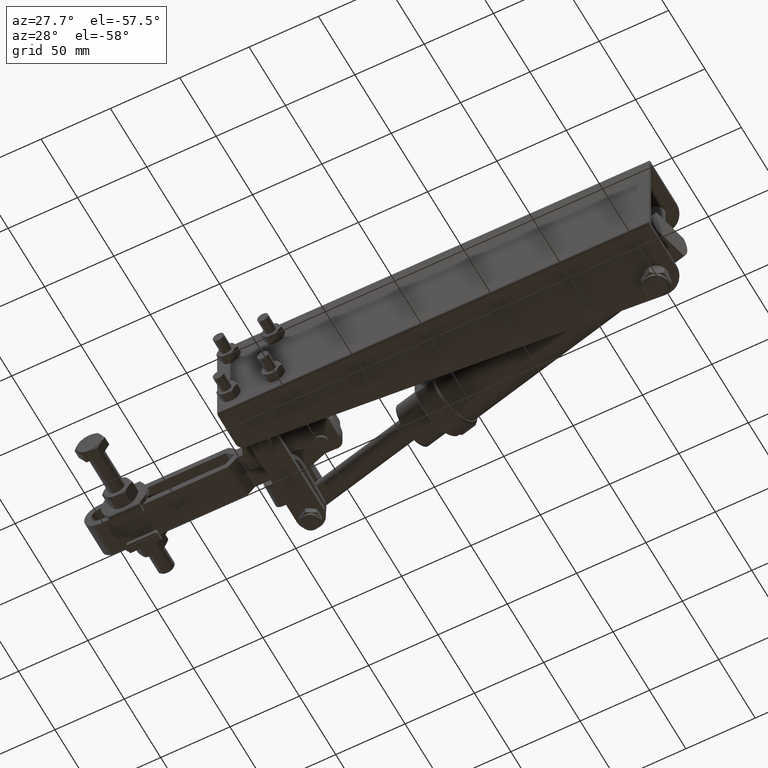
[diagram: clean part render]
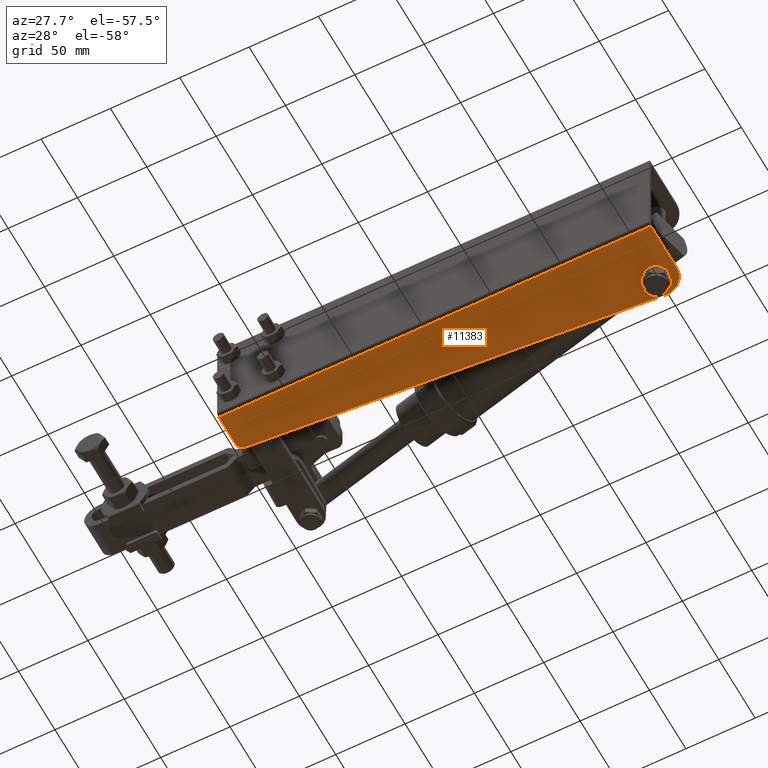
[diagram: same view with one face highlighted and labeled with its STEP entity id]
A machine part, auxiliary view. The second image highlights one B-rep face of the part: STEP entity #11383.
In plain terms, the highlighted planar face has unit normal (0, 0, -1).
Its self-contained STEP definition (entity closure, byte-faithful):
#165 = VERTEX_POINT ( 'NONE', #15543 ) ;
#185 = CARTESIAN_POINT ( 'NONE',  ( 243.5050602532110400, 40.77640014547056800, -37.99999999999999300 ) ) ;
#192 = CARTESIAN_POINT ( 'NONE',  ( 243.6999999999999300, 35.50000000000000700, -37.99999999999999300 ) ) ;
#547 = CIRCLE ( 'NONE', #12667, 5.280000000000006500 ) ;
#564 = ORIENTED_EDGE ( 'NONE', *, *, #20720, .T. ) ;
#708 = VERTEX_POINT ( 'NONE', #7956 ) ;
#774 = DIRECTION ( 'NONE',  ( 0.0000000000000000000, 0.0000000000000000000, 1.000000000000000000 ) ) ;
#1381 = CIRCLE ( 'NONE', #23001, 4.999999999999997300 ) ;
#1435 = DIRECTION ( 'NONE',  ( -1.000000000000000000, 0.0000000000000000000, 0.0000000000000000000 ) ) ;
#1648 = CIRCLE ( 'NONE', #11157, 5.280000000000006500 ) ;
#2064 = DIRECTION ( 'NONE',  ( 1.000000000000000000, 0.0000000000000000000, 0.0000000000000000000 ) ) ;
#2106 = VERTEX_POINT ( 'NONE', #14419 ) ;
#2327 = DIRECTION ( 'NONE',  ( -1.185342761588040300E-016, 1.000000000000000000, -0.0000000000000000000 ) ) ;
#2366 = EDGE_CURVE ( 'NONE', #11077, #3269, #4240, .T. ) ;
#2373 = ORIENTED_EDGE ( 'NONE', *, *, #17873, .T. ) ;
#2474 = CARTESIAN_POINT ( 'NONE',  ( -53.00000000000001400, 27.49999999999999600, -37.99999999999999300 ) ) ;
#2523 = VERTEX_POINT ( 'NONE', #7704 ) ;
#2617 = VERTEX_POINT ( 'NONE', #5683 ) ;
#2804 = VERTEX_POINT ( 'NONE', #185 ) ;
#2841 = CIRCLE ( 'NONE', #5767, 8.480000000000014600 ) ;
#2895 = ORIENTED_EDGE ( 'NONE', *, *, #12608, .F. ) ;
#2974 = AXIS2_PLACEMENT_3D ( 'NONE', #23415, #12435, #1435 ) ;
#3206 = FACE_BOUND ( 'NONE', #23819, .T. ) ;
#3228 = CARTESIAN_POINT ( 'NONE',  ( 235.2199999999999700, 35.50000000000000700, -37.99999999999999300 ) ) ;
#3256 = CIRCLE ( 'NONE', #22781, 15.00000000000001400 ) ;
#3269 = VERTEX_POINT ( 'NONE', #11094 ) ;
#3455 = AXIS2_PLACEMENT_3D ( 'NONE', #21014, #10032, #22853 ) ;
#3517 = DIRECTION ( 'NONE',  ( 0.0000000000000000000, 0.0000000000000000000, 1.000000000000000000 ) ) ;
#3917 = EDGE_CURVE ( 'NONE', #2804, #2523, #6415, .T. ) ;
#4106 = VERTEX_POINT ( 'NONE', #8405 ) ;
#4240 = LINE ( 'NONE', #10107, #18287 ) ;
#4355 = CARTESIAN_POINT ( 'NONE',  ( -53.00000000000001400, -2.500000000000002200, -37.99999999999999300 ) ) ;
#5020 = CIRCLE ( 'NONE', #16448, 8.480000000000014600 ) ;
#5383 = CIRCLE ( 'NONE', #23603, 8.480000000000014600 ) ;
#5470 = DIRECTION ( 'NONE',  ( 0.0000000000000000000, 0.0000000000000000000, -1.000000000000000000 ) ) ;
#5683 = CARTESIAN_POINT ( 'NONE',  ( 242.3376419207618300, 50.45489631176456400, -37.99999999999999300 ) ) ;
#5767 = AXIS2_PLACEMENT_3D ( 'NONE', #11775, #774, #13612 ) ;
#5827 = CARTESIAN_POINT ( 'NONE',  ( 243.6999999999999300, 35.50000000000000700, -37.99999999999999300 ) ) ;
#5936 = DIRECTION ( 'NONE',  ( 0.0000000000000000000, 0.0000000000000000000, 1.000000000000000000 ) ) ;
#5995 = VECTOR ( 'NONE', #9674, 1000.000000000000000 ) ;
#6139 = VERTEX_POINT ( 'NONE', #11399 ) ;
#6156 = LINE ( 'NONE', #15961, #15921 ) ;
#6415 = LINE ( 'NONE', #13284, #11877 ) ;
#6473 = ORIENTED_EDGE ( 'NONE', *, *, #8232, .T. ) ;
#6486 = CARTESIAN_POINT ( 'NONE',  ( 243.6999999999999300, 35.50000000000000700, -37.99999999999999300 ) ) ;
#6684 = EDGE_CURVE ( 'NONE', #6139, #2804, #1648, .T. ) ;
#6817 = EDGE_CURVE ( 'NONE', #8081, #165, #2841, .T. ) ;
#7679 = DIRECTION ( 'NONE',  ( 1.000000000000000000, 0.0000000000000000000, 0.0000000000000000000 ) ) ;
#7704 = CARTESIAN_POINT ( 'NONE',  ( 243.5050602532110400, 43.97775904913095200, -37.99999999999999300 ) ) ;
#7836 = CARTESIAN_POINT ( 'NONE',  ( 243.8949397467887900, 43.97775904913095200, -37.99999999999999300 ) ) ;
#7956 = CARTESIAN_POINT ( 'NONE',  ( 248.6999999999999600, 35.50000000000000000, -37.99999999999999300 ) ) ;
#7993 = DIRECTION ( 'NONE',  ( -0.9969930874509717000, -0.07749053861587780500, 0.0000000000000000000 ) ) ;
#8050 = ORIENTED_EDGE ( 'NONE', *, *, #10723, .T. ) ;
#8081 = VERTEX_POINT ( 'NONE', #17629 ) ;
#8232 = EDGE_CURVE ( 'NONE', #2523, #17434, #5020, .T. ) ;
#8323 = DIRECTION ( 'NONE',  ( 1.000000000000000000, 0.0000000000000000000, 0.0000000000000000000 ) ) ;
#8405 = CARTESIAN_POINT ( 'NONE',  ( -53.00000000000001400, 0.009999999999995689400, -37.99999999999999300 ) ) ;
#8473 = ORIENTED_EDGE ( 'NONE', *, *, #9625, .T. ) ;
#8532 = CARTESIAN_POINT ( 'NONE',  ( -48.00000000000001400, 22.87354133646644500, -37.99999999999999300 ) ) ;
#9247 = EDGE_LOOP ( 'NONE', ( #19635, #18761, #2895, #21284, #17664, #2373 ) ) ;
#9625 = EDGE_CURVE ( 'NONE', #708, #23503, #11638, .T. ) ;
#9674 = DIRECTION ( 'NONE',  ( 6.858054549187947600E-015, -1.000000000000000000, 0.0000000000000000000 ) ) ;
#9780 = EDGE_LOOP ( 'NONE', ( #8473, #17180 ) ) ;
#10032 = DIRECTION ( 'NONE',  ( -0.0000000000000000000, -0.0000000000000000000, 1.000000000000000000 ) ) ;
#10107 = CARTESIAN_POINT ( 'NONE',  ( 258.5000000000000000, -2.500000000000002200, -37.99999999999999300 ) ) ;
#10254 = CARTESIAN_POINT ( 'NONE',  ( 243.4999999999999700, 35.50000000000000000, -37.99999999999999300 ) ) ;
#10372 = CARTESIAN_POINT ( 'NONE',  ( 248.9799999999999600, 35.50000000000000700, -37.99999999999999300 ) ) ;
#10383 = DIRECTION ( 'NONE',  ( -1.000000000000000000, 0.0000000000000000000, 0.0000000000000000000 ) ) ;
#10723 = EDGE_CURVE ( 'NONE', #15333, #19082, #23328, .T. ) ;
#10786 = EDGE_CURVE ( 'NONE', #11077, #2617, #3256, .T. ) ;
#10881 = LINE ( 'NONE', #7836, #5995 ) ;
#11077 = VERTEX_POINT ( 'NONE', #13523 ) ;
#11094 = CARTESIAN_POINT ( 'NONE',  ( 258.5000000000000000, 0.009999999999995689400, -37.99999999999999300 ) ) ;
#11157 = AXIS2_PLACEMENT_3D ( 'NONE', #5827, #18672, #7679 ) ;
#11383 = ADVANCED_FACE ( 'NONE', ( #3206, #12385, #22110 ), #18234, .T. ) ;
#11399 = CARTESIAN_POINT ( 'NONE',  ( 238.4199999999999300, 35.50000000000000700, -37.99999999999999300 ) ) ;
#11638 = CIRCLE ( 'NONE', #2974, 5.000000000000004400 ) ;
#11775 = CARTESIAN_POINT ( 'NONE',  ( 243.6999999999999300, 35.50000000000000700, -37.99999999999999300 ) ) ;
#11877 = VECTOR ( 'NONE', #2327, 1000.000000000000000 ) ;
#12109 = DIRECTION ( 'NONE',  ( -1.000000000000000000, 0.0000000000000000000, 0.0000000000000000000 ) ) ;
#12195 = DIRECTION ( 'NONE',  ( -1.000000000000000000, -0.0000000000000000000, -0.0000000000000000000 ) ) ;
#12385 = FACE_OUTER_BOUND ( 'NONE', #9247, .T. ) ;
#12435 = DIRECTION ( 'NONE',  ( -0.0000000000000000000, -0.0000000000000000000, 1.000000000000000000 ) ) ;
#12550 = EDGE_CURVE ( 'NONE', #165, #15333, #10881, .T. ) ;
#12581 = EDGE_CURVE ( 'NONE', #2106, #4106, #20056, .T. ) ;
#12608 = EDGE_CURVE ( 'NONE', #2617, #23011, #20631, .T. ) ;
#12667 = AXIS2_PLACEMENT_3D ( 'NONE', #192, #13024, #2064 ) ;
#12946 = AXIS2_PLACEMENT_3D ( 'NONE', #6486, #19320, #8323 ) ;
#13024 = DIRECTION ( 'NONE',  ( -0.0000000000000000000, -0.0000000000000000000, -1.000000000000000000 ) ) ;
#13195 = EDGE_CURVE ( 'NONE', #2106, #23011, #1381, .T. ) ;
#13284 = CARTESIAN_POINT ( 'NONE',  ( 243.5050602532110400, 43.97775904913095200, -37.99999999999999300 ) ) ;
#13523 = CARTESIAN_POINT ( 'NONE',  ( 258.5000000000000000, 35.50000000000000000, -37.99999999999999300 ) ) ;
#13612 = DIRECTION ( 'NONE',  ( 1.000000000000000000, 0.0000000000000000000, 0.0000000000000000000 ) ) ;
#14017 = CARTESIAN_POINT ( 'NONE',  ( 238.6999999999999300, 35.50000000000000000, -37.99999999999999300 ) ) ;
#14419 = CARTESIAN_POINT ( 'NONE',  ( -53.00000000000001400, 22.87354133646643800, -37.99999999999999300 ) ) ;
#14486 = CARTESIAN_POINT ( 'NONE',  ( 243.6999999999999300, 35.50000000000000700, -37.99999999999999300 ) ) ;
#14990 = ORIENTED_EDGE ( 'NONE', *, *, #3917, .T. ) ;
#15160 = ORIENTED_EDGE ( 'NONE', *, *, #21289, .T. ) ;
#15171 = VECTOR ( 'NONE', #15198, 1000.000000000000000 ) ;
#15198 = DIRECTION ( 'NONE',  ( -0.0000000000000000000, -1.000000000000000000, -0.0000000000000000000 ) ) ;
#15333 = VERTEX_POINT ( 'NONE', #18146 ) ;
#15543 = CARTESIAN_POINT ( 'NONE',  ( 243.8949397467887900, 43.97775904913095200, -37.99999999999999300 ) ) ;
#15921 = VECTOR ( 'NONE', #12195, 1000.000000000000000 ) ;
#15961 = CARTESIAN_POINT ( 'NONE',  ( 258.5000000000000000, 0.009999999999995689400, -37.99999999999999300 ) ) ;
#16059 = AXIS2_PLACEMENT_3D ( 'NONE', #16482, #5470, #18309 ) ;
#16354 = DIRECTION ( 'NONE',  ( 1.000000000000000000, 0.0000000000000000000, 0.0000000000000000000 ) ) ;
#16448 = AXIS2_PLACEMENT_3D ( 'NONE', #14486, #3517, #16354 ) ;
#16482 = CARTESIAN_POINT ( 'NONE',  ( 258.5000000000000000, -2.500000000000002200, -37.99999999999999300 ) ) ;
#16938 = CARTESIAN_POINT ( 'NONE',  ( 243.6999999999999300, 35.50000000000000700, -37.99999999999999300 ) ) ;
#17115 = CIRCLE ( 'NONE', #3455, 5.000000000000004400 ) ;
#17127 = ORIENTED_EDGE ( 'NONE', *, *, #6817, .T. ) ;
#17180 = ORIENTED_EDGE ( 'NONE', *, *, #17282, .T. ) ;
#17282 = EDGE_CURVE ( 'NONE', #23503, #708, #17115, .T. ) ;
#17434 = VERTEX_POINT ( 'NONE', #3228 ) ;
#17629 = CARTESIAN_POINT ( 'NONE',  ( 252.1799999999999500, 35.50000000000000700, -37.99999999999999300 ) ) ;
#17664 = ORIENTED_EDGE ( 'NONE', *, *, #2366, .T. ) ;
#17873 = EDGE_CURVE ( 'NONE', #3269, #4106, #6156, .T. ) ;
#18146 = CARTESIAN_POINT ( 'NONE',  ( 243.8949397467888500, 40.77640014547056800, -37.99999999999999300 ) ) ;
#18234 = PLANE ( 'NONE',  #16059 ) ;
#18287 = VECTOR ( 'NONE', #22926, 1000.000000000000000 ) ;
#18309 = DIRECTION ( 'NONE',  ( -1.000000000000000000, 0.0000000000000000000, -0.0000000000000000000 ) ) ;
#18672 = DIRECTION ( 'NONE',  ( -0.0000000000000000000, -0.0000000000000000000, -1.000000000000000000 ) ) ;
#18761 = ORIENTED_EDGE ( 'NONE', *, *, #13195, .T. ) ;
#18785 = DIRECTION ( 'NONE',  ( 1.000000000000000000, 0.0000000000000000000, 0.0000000000000000000 ) ) ;
#19082 = VERTEX_POINT ( 'NONE', #10372 ) ;
#19320 = DIRECTION ( 'NONE',  ( -0.0000000000000000000, -0.0000000000000000000, -1.000000000000000000 ) ) ;
#19440 = ORIENTED_EDGE ( 'NONE', *, *, #12550, .T. ) ;
#19485 = VECTOR ( 'NONE', #7993, 1000.000000000000100 ) ;
#19635 = ORIENTED_EDGE ( 'NONE', *, *, #12581, .F. ) ;
#20056 = LINE ( 'NONE', #4355, #15171 ) ;
#20631 = LINE ( 'NONE', #2474, #19485 ) ;
#20720 = EDGE_CURVE ( 'NONE', #19082, #6139, #547, .T. ) ;
#20843 = ORIENTED_EDGE ( 'NONE', *, *, #6684, .T. ) ;
#21014 = CARTESIAN_POINT ( 'NONE',  ( 243.6999999999999300, 35.50000000000000000, -37.99999999999999300 ) ) ;
#21284 = ORIENTED_EDGE ( 'NONE', *, *, #10786, .F. ) ;
#21289 = EDGE_CURVE ( 'NONE', #17434, #8081, #5383, .T. ) ;
#21358 = DIRECTION ( 'NONE',  ( 0.0000000000000000000, 0.0000000000000000000, -1.000000000000000000 ) ) ;
#21485 = CARTESIAN_POINT ( 'NONE',  ( -48.38745269307939600, 27.85850677372130200, -37.99999999999999300 ) ) ;
#22110 = FACE_BOUND ( 'NONE', #9780, .T. ) ;
#22781 = AXIS2_PLACEMENT_3D ( 'NONE', #10254, #23081, #12109 ) ;
#22853 = DIRECTION ( 'NONE',  ( -1.000000000000000000, 0.0000000000000000000, 0.0000000000000000000 ) ) ;
#22926 = DIRECTION ( 'NONE',  ( -0.0000000000000000000, -1.000000000000000000, -0.0000000000000000000 ) ) ;
#23001 = AXIS2_PLACEMENT_3D ( 'NONE', #8532, #21358, #10383 ) ;
#23011 = VERTEX_POINT ( 'NONE', #21485 ) ;
#23081 = DIRECTION ( 'NONE',  ( -0.0000000000000000000, -0.0000000000000000000, 1.000000000000000000 ) ) ;
#23328 = CIRCLE ( 'NONE', #12946, 5.280000000000006500 ) ;
#23415 = CARTESIAN_POINT ( 'NONE',  ( 243.6999999999999300, 35.50000000000000000, -37.99999999999999300 ) ) ;
#23503 = VERTEX_POINT ( 'NONE', #14017 ) ;
#23603 = AXIS2_PLACEMENT_3D ( 'NONE', #16938, #5936, #18785 ) ;
#23819 = EDGE_LOOP ( 'NONE', ( #14990, #6473, #15160, #17127, #19440, #8050, #564, #20843 ) ) ;